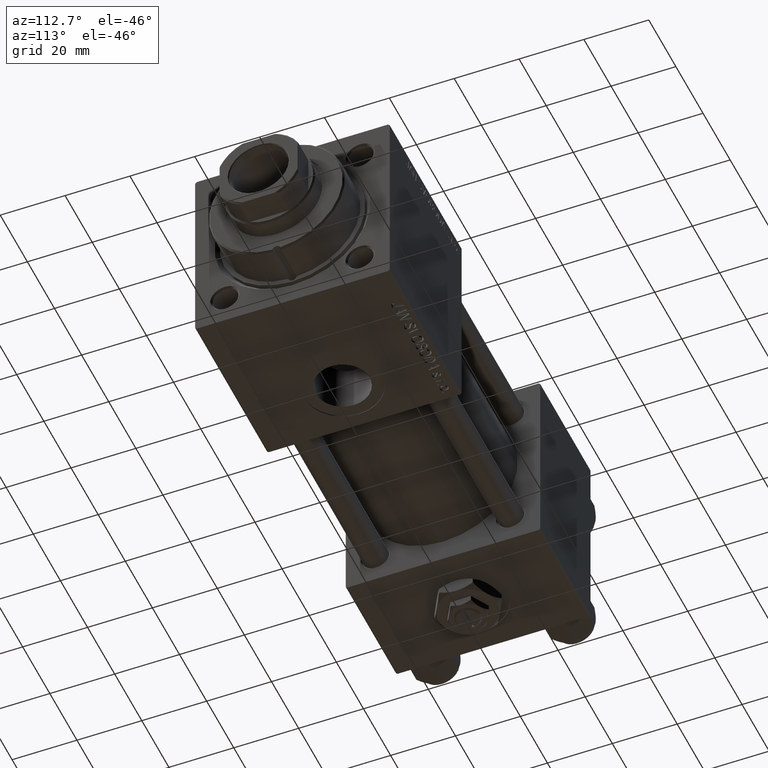
[diagram: clean part render]
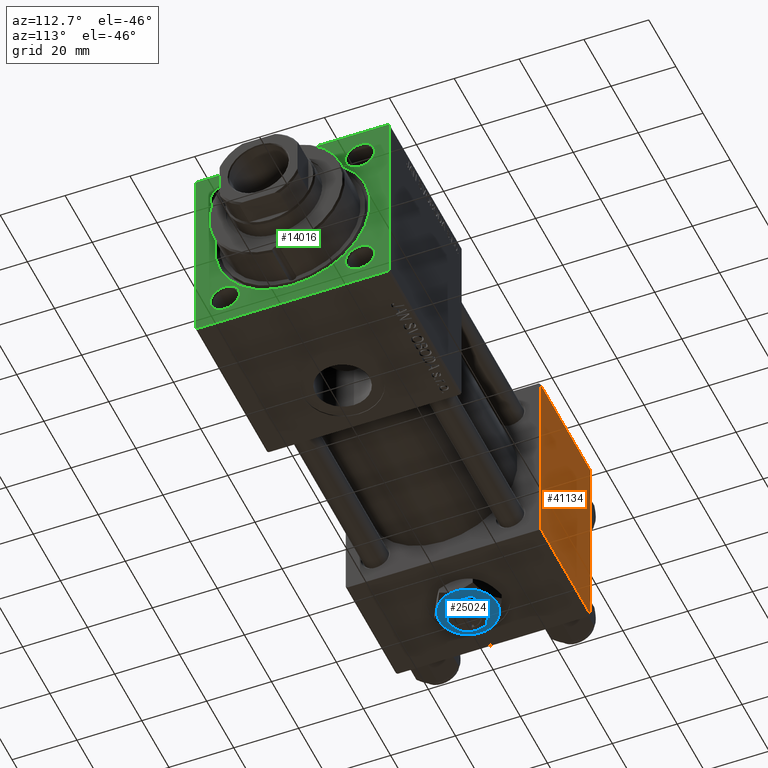
[diagram: same view with three faces highlighted in distinct colors, each labeled with its STEP entity id]
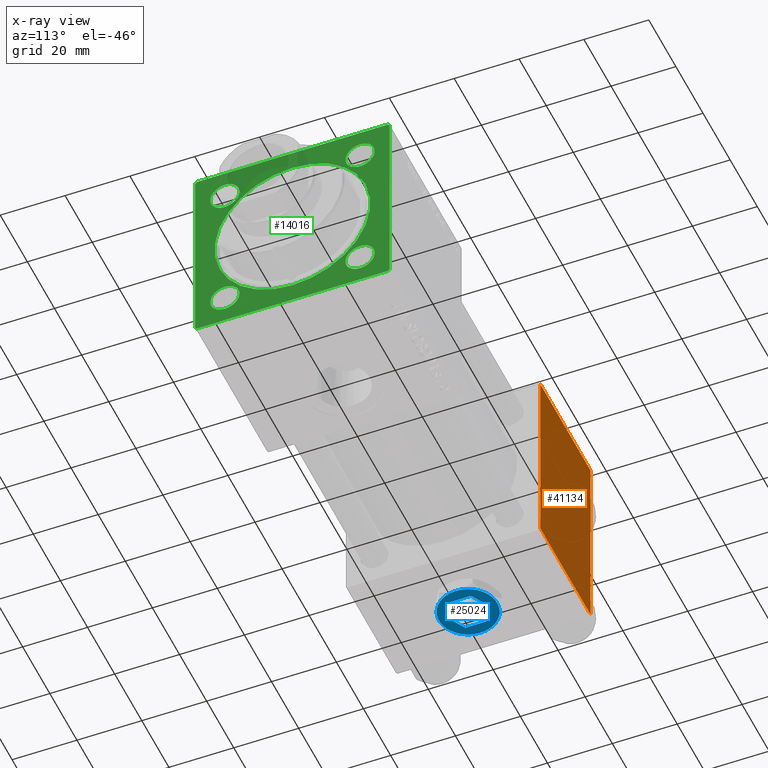
[diagram: x-ray of the same camera — body ghosted, the three highlighted faces saturated]
A machine part, auxiliary view with three faces highlighted in distinct colors.
The next image is the same camera in x-ray (body ghosted, the three faces saturated) — at least one of them is partly hidden behind the body in this view.
Their STEP definitions:

[orange] entity #41134 — the highlighted planar face has unit normal (0, 1, 0).
#448 = DIRECTION ( 'NONE',  ( 0.000000000000000000, 0.000000000000000000, -1.000000000000000000 ) ) ;
#960 = LINE ( 'NONE', #16633, #13147 ) ;
#3804 = CARTESIAN_POINT ( 'NONE',  ( 0.000000000000000000, 29.99999999999999289, 29.50000000000000000 ) ) ;
#4097 = VECTOR ( 'NONE', #15268, 1000.000000000000000 ) ;
#4665 = EDGE_CURVE ( 'NONE', #27742, #17965, #45843, .T. ) ;
#4976 = DIRECTION ( 'NONE',  ( 0.000000000000000000, -0.000000000000000000, 1.000000000000000000 ) ) ;
#6213 = VERTEX_POINT ( 'NONE', #26075 ) ;
#6557 = CARTESIAN_POINT ( 'NONE',  ( 37.00000000000000000, 29.99999999999999289, 29.50000000000000000 ) ) ;
#7133 = VECTOR ( 'NONE', #36559, 1000.000000000000000 ) ;
#8031 = ORIENTED_EDGE ( 'NONE', *, *, #4665, .T. ) ;
#8433 = CARTESIAN_POINT ( 'NONE',  ( 37.00000000000000000, 29.99999999999999289, 30.00000000000000000 ) ) ;
#13147 = VECTOR ( 'NONE', #448, 1000.000000000000000 ) ;
#15268 = DIRECTION ( 'NONE',  ( 1.000000000000000000, 0.000000000000000000, 0.000000000000000000 ) ) ;
#16633 = CARTESIAN_POINT ( 'NONE',  ( 0.000000000000000000, 29.99999999999999289, 30.00000000000000000 ) ) ;
#16919 = FACE_OUTER_BOUND ( 'NONE', #49686, .T. ) ;
#17274 = VERTEX_POINT ( 'NONE', #46588 ) ;
#17965 = VERTEX_POINT ( 'NONE', #6557 ) ;
#21336 = EDGE_CURVE ( 'NONE', #17965, #17274, #28075, .T. ) ;
#23563 = CARTESIAN_POINT ( 'NONE',  ( 37.00000000000000000, 29.99999999999999289, 30.00000000000000000 ) ) ;
#23725 = VECTOR ( 'NONE', #49838, 1000.000000000000000 ) ;
#25648 = EDGE_CURVE ( 'NONE', #27742, #6213, #960, .T. ) ;
#26075 = CARTESIAN_POINT ( 'NONE',  ( 0.000000000000000000, 29.99999999999999289, -29.50000000000000000 ) ) ;
#27470 = ORIENTED_EDGE ( 'NONE', *, *, #25648, .F. ) ;
#27742 = VERTEX_POINT ( 'NONE', #3804 ) ;
#28075 = LINE ( 'NONE', #23563, #7133 ) ;
#34812 = EDGE_CURVE ( 'NONE', #17274, #6213, #36824, .T. ) ;
#36559 = DIRECTION ( 'NONE',  ( 0.000000000000000000, 0.000000000000000000, -1.000000000000000000 ) ) ;
#36824 = LINE ( 'NONE', #41605, #23725 ) ;
#37099 = DIRECTION ( 'NONE',  ( -0.000000000000000000, 1.000000000000000000, 0.000000000000000000 ) ) ;
#38249 = ORIENTED_EDGE ( 'NONE', *, *, #21336, .T. ) ;
#41134 = ADVANCED_FACE ( 'NONE', ( #16919 ), #48799, .T. ) ;
#41605 = CARTESIAN_POINT ( 'NONE',  ( 37.00000000000000000, 29.99999999999999289, -29.50000000000000000 ) ) ;
#41607 = ORIENTED_EDGE ( 'NONE', *, *, #34812, .T. ) ;
#41861 = CARTESIAN_POINT ( 'NONE',  ( 37.00000000000000000, 29.99999999999999289, 29.50000000000000000 ) ) ;
#42650 = AXIS2_PLACEMENT_3D ( 'NONE', #8433, #37099, #4976 ) ;
#45843 = LINE ( 'NONE', #41861, #4097 ) ;
#46588 = CARTESIAN_POINT ( 'NONE',  ( 37.00000000000000000, 29.99999999999999289, -29.50000000000000000 ) ) ;
#48799 = PLANE ( 'NONE',  #42650 ) ;
#49686 = EDGE_LOOP ( 'NONE', ( #38249, #41607, #27470, #8031 ) ) ;
#49838 = DIRECTION ( 'NONE',  ( -1.000000000000000000, 0.000000000000000000, 0.000000000000000000 ) ) ;

[blue] entity #25024 — the highlighted planar face has unit normal (0, -0, -1).
#381 = ORIENTED_EDGE ( 'NONE', *, *, #9295, .T. ) ;
#1992 = VERTEX_POINT ( 'NONE', #48084 ) ;
#2158 = LINE ( 'NONE', #35078, #9221 ) ;
#2186 = ORIENTED_EDGE ( 'NONE', *, *, #42245, .T. ) ;
#3180 = VERTEX_POINT ( 'NONE', #36087 ) ;
#3746 = CARTESIAN_POINT ( 'NONE',  ( -5.500000000000000000, 3.175426480542941743, 4.299999999999999822 ) ) ;
#3763 = EDGE_CURVE ( 'NONE', #19142, #19970, #39657, .T. ) ;
#4172 = CARTESIAN_POINT ( 'NONE',  ( 4.499999999999997335, -7.794228634059948035, 4.299999999999999822 ) ) ;
#4493 = ORIENTED_EDGE ( 'NONE', *, *, #20255, .T. ) ;
#5068 = FACE_OUTER_BOUND ( 'NONE', #18800, .T. ) ;
#6039 = CIRCLE ( 'NONE', #32329, 9.000000000000000000 ) ;
#6346 = EDGE_CURVE ( 'NONE', #20688, #1992, #2158, .T. ) ;
#7048 = VERTEX_POINT ( 'NONE', #10516 ) ;
#7203 = ORIENTED_EDGE ( 'NONE', *, *, #15331, .T. ) ;
#7451 = LINE ( 'NONE', #35074, #46806 ) ;
#7663 = CARTESIAN_POINT ( 'NONE',  ( -4.499999999999998224, -7.794228634059947147, 4.299999999999999822 ) ) ;
#7765 = CARTESIAN_POINT ( 'NONE',  ( 0.000000000000000000, 0.000000000000000000, 4.299999999999999822 ) ) ;
#7955 = AXIS2_PLACEMENT_3D ( 'NONE', #9048, #37452, #36930 ) ;
#8982 = EDGE_CURVE ( 'NONE', #7048, #48124, #51752, .T. ) ;
#9048 = CARTESIAN_POINT ( 'NONE',  ( 0.000000000000000000, 0.000000000000000000, 4.299999999999999822 ) ) ;
#9156 = DIRECTION ( 'NONE',  ( 0.000000000000000000, 0.000000000000000000, 1.000000000000000000 ) ) ;
#9221 = VECTOR ( 'NONE', #15159, 1000.000000000000114 ) ;
#9245 = VECTOR ( 'NONE', #26919, 1000.000000000000000 ) ;
#9295 = EDGE_CURVE ( 'NONE', #27180, #38042, #26293, .T. ) ;
#9560 = AXIS2_PLACEMENT_3D ( 'NONE', #31757, #28041, #52205 ) ;
#9577 = PLANE ( 'NONE',  #7955 ) ;
#10516 = CARTESIAN_POINT ( 'NONE',  ( -1.343581385738006573E-15, -6.350852961085881709, 4.299999999999999822 ) ) ;
#11028 = VECTOR ( 'NONE', #31568, 1000.000000000000000 ) ;
#11055 = DIRECTION ( 'NONE',  ( 0.000000000000000000, 0.000000000000000000, 1.000000000000000000 ) ) ;
#11224 = DIRECTION ( 'NONE',  ( 1.000000000000000000, 0.000000000000000000, 0.000000000000000000 ) ) ;
#12307 = CARTESIAN_POINT ( 'NONE',  ( 0.000000000000000000, 0.000000000000000000, 4.299999999999999822 ) ) ;
#14261 = CARTESIAN_POINT ( 'NONE',  ( 0.000000000000000000, 0.000000000000000000, 4.299999999999999822 ) ) ;
#14469 = ORIENTED_EDGE ( 'NONE', *, *, #23966, .F. ) ;
#15159 = DIRECTION ( 'NONE',  ( -0.8660254037844385966, -0.4999999999999999445, 0.000000000000000000 ) ) ;
#15331 = EDGE_CURVE ( 'NONE', #27753, #27180, #6039, .T. ) ;
#16879 = CARTESIAN_POINT ( 'NONE',  ( 5.499999999999999112, 3.175426480542943075, 4.299999999999999822 ) ) ;
#17157 = ORIENTED_EDGE ( 'NONE', *, *, #43999, .F. ) ;
#18800 = EDGE_LOOP ( 'NONE', ( #38188, #4493, #39419, #2186, #7203, #381 ) ) ;
#19142 = VERTEX_POINT ( 'NONE', #51284 ) ;
#19970 = VERTEX_POINT ( 'NONE', #23466 ) ;
#20208 = DIRECTION ( 'NONE',  ( 0.000000000000000000, -1.000000000000000000, 0.000000000000000000 ) ) ;
#20255 = EDGE_CURVE ( 'NONE', #3180, #19142, #24030, .T. ) ;
#20688 = VERTEX_POINT ( 'NONE', #43922 ) ;
#23014 = CARTESIAN_POINT ( 'NONE',  ( 0.000000000000000000, 0.000000000000000000, 4.299999999999999822 ) ) ;
#23076 = CARTESIAN_POINT ( 'NONE',  ( -1.343581385738006573E-15, -6.350852961085881709, 4.299999999999999822 ) ) ;
#23466 = CARTESIAN_POINT ( 'NONE',  ( -4.500000000000000000, 7.794228634059947147, 4.299999999999999822 ) ) ;
#23966 = EDGE_CURVE ( 'NONE', #1992, #45496, #27666, .T. ) ;
#23991 = CARTESIAN_POINT ( 'NONE',  ( -9.000000000000000000, 0.000000000000000000, 4.299999999999999822 ) ) ;
#24030 = CIRCLE ( 'NONE', #48628, 9.000000000000000000 ) ;
#25024 = ADVANCED_FACE ( 'NONE', ( #5068, #49948 ), #9577, .T. ) ;
#26166 = ORIENTED_EDGE ( 'NONE', *, *, #33114, .F. ) ;
#26293 = CIRCLE ( 'NONE', #46637, 9.000000000000000000 ) ;
#26919 = DIRECTION ( 'NONE',  ( 0.8660254037844387076, -0.4999999999999998890, 0.000000000000000000 ) ) ;
#27168 = DIRECTION ( 'NONE',  ( 0.000000000000000000, 0.000000000000000000, 1.000000000000000000 ) ) ;
#27180 = VERTEX_POINT ( 'NONE', #7663 ) ;
#27666 = LINE ( 'NONE', #3746, #47905 ) ;
#27753 = VERTEX_POINT ( 'NONE', #23991 ) ;
#28041 = DIRECTION ( 'NONE',  ( 0.000000000000000000, 0.000000000000000000, 1.000000000000000000 ) ) ;
#28226 = LINE ( 'NONE', #48395, #38911 ) ;
#28410 = VERTEX_POINT ( 'NONE', #16879 ) ;
#29027 = DIRECTION ( 'NONE',  ( 0.000000000000000000, 0.000000000000000000, 1.000000000000000000 ) ) ;
#29403 = CARTESIAN_POINT ( 'NONE',  ( -5.500000000000000000, -3.175426480542942187, 4.299999999999999822 ) ) ;
#31568 = DIRECTION ( 'NONE',  ( 0.8660254037844388186, 0.4999999999999997224, 0.000000000000000000 ) ) ;
#31757 = CARTESIAN_POINT ( 'NONE',  ( 0.000000000000000000, 0.000000000000000000, 4.299999999999999822 ) ) ;
#31961 = DIRECTION ( 'NONE',  ( 1.000000000000000000, 0.000000000000000000, 0.000000000000000000 ) ) ;
#32329 = AXIS2_PLACEMENT_3D ( 'NONE', #7765, #27168, #11224 ) ;
#32435 = CIRCLE ( 'NONE', #9560, 9.000000000000000000 ) ;
#33114 = EDGE_CURVE ( 'NONE', #45496, #7048, #39111, .T. ) ;
#33237 = EDGE_CURVE ( 'NONE', #28410, #20688, #28226, .T. ) ;
#33351 = CIRCLE ( 'NONE', #40976, 9.000000000000000000 ) ;
#35074 = CARTESIAN_POINT ( 'NONE',  ( 5.500000000000000888, -3.175426480542940855, 4.299999999999999822 ) ) ;
#35078 = CARTESIAN_POINT ( 'NONE',  ( 0.000000000000000000, 6.350852961085883486, 4.299999999999999822 ) ) ;
#35148 = ORIENTED_EDGE ( 'NONE', *, *, #8982, .F. ) ;
#35786 = ORIENTED_EDGE ( 'NONE', *, *, #33237, .F. ) ;
#36087 = CARTESIAN_POINT ( 'NONE',  ( 8.999999999999998224, 0.000000000000000000, 4.299999999999999822 ) ) ;
#36429 = EDGE_LOOP ( 'NONE', ( #45647, #35786, #17157, #35148, #26166, #14469 ) ) ;
#36930 = DIRECTION ( 'NONE',  ( 1.000000000000000000, 0.000000000000000000, -0.000000000000000000 ) ) ;
#37299 = DIRECTION ( 'NONE',  ( 1.000000000000000000, 0.000000000000000000, 0.000000000000000000 ) ) ;
#37452 = DIRECTION ( 'NONE',  ( 0.000000000000000000, 0.000000000000000000, 1.000000000000000000 ) ) ;
#38042 = VERTEX_POINT ( 'NONE', #4172 ) ;
#38188 = ORIENTED_EDGE ( 'NONE', *, *, #42157, .T. ) ;
#38911 = VECTOR ( 'NONE', #48659, 1000.000000000000000 ) ;
#38931 = DIRECTION ( 'NONE',  ( 0.000000000000000000, 0.000000000000000000, 1.000000000000000000 ) ) ;
#39111 = LINE ( 'NONE', #43645, #9245 ) ;
#39419 = ORIENTED_EDGE ( 'NONE', *, *, #3763, .T. ) ;
#39657 = CIRCLE ( 'NONE', #47278, 9.000000000000000000 ) ;
#40976 = AXIS2_PLACEMENT_3D ( 'NONE', #49001, #9156, #37299 ) ;
#42157 = EDGE_CURVE ( 'NONE', #38042, #3180, #32435, .T. ) ;
#42245 = EDGE_CURVE ( 'NONE', #19970, #27753, #33351, .T. ) ;
#42420 = DIRECTION ( 'NONE',  ( 1.000000000000000000, 0.000000000000000000, 0.000000000000000000 ) ) ;
#42944 = DIRECTION ( 'NONE',  ( 1.000000000000000000, 0.000000000000000000, 0.000000000000000000 ) ) ;
#43645 = CARTESIAN_POINT ( 'NONE',  ( -5.500000000000000000, -3.175426480542942187, 4.299999999999999822 ) ) ;
#43922 = CARTESIAN_POINT ( 'NONE',  ( 0.000000000000000000, 6.350852961085883486, 4.299999999999999822 ) ) ;
#43999 = EDGE_CURVE ( 'NONE', #48124, #28410, #7451, .T. ) ;
#45496 = VERTEX_POINT ( 'NONE', #29403 ) ;
#45647 = ORIENTED_EDGE ( 'NONE', *, *, #6346, .F. ) ;
#46637 = AXIS2_PLACEMENT_3D ( 'NONE', #14261, #38931, #42944 ) ;
#46806 = VECTOR ( 'NONE', #51791, 1000.000000000000000 ) ;
#47278 = AXIS2_PLACEMENT_3D ( 'NONE', #12307, #29027, #31961 ) ;
#47905 = VECTOR ( 'NONE', #20208, 1000.000000000000000 ) ;
#48084 = CARTESIAN_POINT ( 'NONE',  ( -5.500000000000000000, 3.175426480542941743, 4.299999999999999822 ) ) ;
#48124 = VERTEX_POINT ( 'NONE', #48942 ) ;
#48395 = CARTESIAN_POINT ( 'NONE',  ( 5.499999999999999112, 3.175426480542943075, 4.299999999999999822 ) ) ;
#48628 = AXIS2_PLACEMENT_3D ( 'NONE', #23014, #11055, #42420 ) ;
#48659 = DIRECTION ( 'NONE',  ( -0.8660254037844387076, 0.4999999999999999445, 0.000000000000000000 ) ) ;
#48942 = CARTESIAN_POINT ( 'NONE',  ( 5.500000000000000888, -3.175426480542940855, 4.299999999999999822 ) ) ;
#49001 = CARTESIAN_POINT ( 'NONE',  ( 0.000000000000000000, 0.000000000000000000, 4.299999999999999822 ) ) ;
#49948 = FACE_BOUND ( 'NONE', #36429, .T. ) ;
#51284 = CARTESIAN_POINT ( 'NONE',  ( 4.500000000000000000, 7.794228634059947147, 4.299999999999999822 ) ) ;
#51752 = LINE ( 'NONE', #23076, #11028 ) ;
#51791 = DIRECTION ( 'NONE',  ( -2.731481088613017227E-16, 1.000000000000000000, 0.000000000000000000 ) ) ;
#52205 = DIRECTION ( 'NONE',  ( 1.000000000000000000, 0.000000000000000000, 0.000000000000000000 ) ) ;

[green] entity #14016 — the highlighted planar face has unit normal (-1, 0, 0).
#268 = DIRECTION ( 'NONE',  ( 0.000000000000000000, 0.000000000000000000, 1.000000000000000000 ) ) ;
#529 = ORIENTED_EDGE ( 'NONE', *, *, #23043, .T. ) ;
#614 = DIRECTION ( 'NONE',  ( 0.000000000000000000, 0.000000000000000000, 1.000000000000000000 ) ) ;
#855 = DIRECTION ( 'NONE',  ( 0.000000000000000000, 0.000000000000000000, 1.000000000000000000 ) ) ;
#1070 = VECTOR ( 'NONE', #33973, 1000.000000000000114 ) ;
#1334 = CARTESIAN_POINT ( 'NONE',  ( 148.0000000000000000, 20.84999999999999787, -20.85000000000000142 ) ) ;
#1670 = EDGE_LOOP ( 'NONE', ( #31644, #13446 ) ) ;
#1743 = CIRCLE ( 'NONE', #5989, 4.500000000000017764 ) ;
#1928 = LINE ( 'NONE', #38033, #24387 ) ;
#2193 = EDGE_CURVE ( 'NONE', #45841, #49703, #29326, .T. ) ;
#2514 = FACE_BOUND ( 'NONE', #24254, .T. ) ;
#2841 = DIRECTION ( 'NONE',  ( -1.000000000000000000, 0.000000000000000000, -0.000000000000000000 ) ) ;
#2845 = EDGE_LOOP ( 'NONE', ( #48199, #37783 ) ) ;
#3543 = CARTESIAN_POINT ( 'NONE',  ( 148.0000000000000000, -30.00000000000000000, -29.49999999999998579 ) ) ;
#3619 = EDGE_CURVE ( 'NONE', #45393, #12062, #9170, .T. ) ;
#3770 = CIRCLE ( 'NONE', #39404, 4.500000000000017764 ) ;
#3885 = EDGE_CURVE ( 'NONE', #31444, #33824, #1928, .T. ) ;
#3899 = ORIENTED_EDGE ( 'NONE', *, *, #50104, .T. ) ;
#4513 = LINE ( 'NONE', #21230, #12541 ) ;
#4699 = EDGE_LOOP ( 'NONE', ( #529, #12452, #27360, #11138, #13552, #22848, #24352, #31341 ) ) ;
#4827 = CARTESIAN_POINT ( 'NONE',  ( 148.0000000000000000, 30.00000000000000000, -29.99999999999999289 ) ) ;
#5391 = EDGE_CURVE ( 'NONE', #30868, #28001, #24419, .T. ) ;
#5783 = DIRECTION ( 'NONE',  ( 0.000000000000000000, 0.000000000000000000, 1.000000000000000000 ) ) ;
#5978 = DIRECTION ( 'NONE',  ( -0.000000000000000000, 0.7071067811865474617, 0.7071067811865474617 ) ) ;
#5989 = AXIS2_PLACEMENT_3D ( 'NONE', #37223, #20517, #855 ) ;
#6264 = VERTEX_POINT ( 'NONE', #9864 ) ;
#7355 = EDGE_CURVE ( 'NONE', #35449, #6264, #27080, .T. ) ;
#7510 = VERTEX_POINT ( 'NONE', #14699 ) ;
#8382 = EDGE_CURVE ( 'NONE', #14803, #7510, #30487, .T. ) ;
#8683 = CARTESIAN_POINT ( 'NONE',  ( 148.0000000000000000, -30.00000000000000000, 29.49999999999999289 ) ) ;
#9043 = CARTESIAN_POINT ( 'NONE',  ( 148.0000000000000000, 20.84999999999999787, -16.34999999999998366 ) ) ;
#9121 = CARTESIAN_POINT ( 'NONE',  ( 148.0000000000000000, -30.00000000000000000, 29.49999999999999289 ) ) ;
#9170 = LINE ( 'NONE', #37578, #43913 ) ;
#9232 = DIRECTION ( 'NONE',  ( -1.000000000000000000, 0.000000000000000000, -0.000000000000000000 ) ) ;
#9250 = EDGE_LOOP ( 'NONE', ( #30861, #37966 ) ) ;
#9263 = EDGE_CURVE ( 'NONE', #44538, #39688, #50878, .T. ) ;
#9529 = LINE ( 'NONE', #17751, #25517 ) ;
#9864 = CARTESIAN_POINT ( 'NONE',  ( 148.0000000000000000, -20.85000000000000142, -16.34999999999998366 ) ) ;
#9994 = CARTESIAN_POINT ( 'NONE',  ( 148.0000000000000000, 20.84999999999999787, -25.35000000000001918 ) ) ;
#10228 = AXIS2_PLACEMENT_3D ( 'NONE', #34662, #10490, #51124 ) ;
#10452 = EDGE_CURVE ( 'NONE', #49703, #45841, #38212, .T. ) ;
#10490 = DIRECTION ( 'NONE',  ( -1.000000000000000000, 0.000000000000000000, -0.000000000000000000 ) ) ;
#10500 = VERTEX_POINT ( 'NONE', #27221 ) ;
#10817 = EDGE_CURVE ( 'NONE', #33824, #10500, #9529, .T. ) ;
#11138 = ORIENTED_EDGE ( 'NONE', *, *, #3619, .T. ) ;
#11678 = DIRECTION ( 'NONE',  ( -1.000000000000000000, 0.000000000000000000, -0.000000000000000000 ) ) ;
#12007 = LINE ( 'NONE', #4827, #27183 ) ;
#12062 = VERTEX_POINT ( 'NONE', #33442 ) ;
#12322 = DIRECTION ( 'NONE',  ( -0.000000000000000000, -0.7071067811865474617, -0.7071067811865474617 ) ) ;
#12452 = ORIENTED_EDGE ( 'NONE', *, *, #18604, .T. ) ;
#12483 = DIRECTION ( 'NONE',  ( 0.000000000000000000, 0.000000000000000000, 1.000000000000000000 ) ) ;
#12541 = VECTOR ( 'NONE', #48858, 1000.000000000000000 ) ;
#12549 = AXIS2_PLACEMENT_3D ( 'NONE', #36114, #11678, #268 ) ;
#13446 = ORIENTED_EDGE ( 'NONE', *, *, #10452, .T. ) ;
#13552 = ORIENTED_EDGE ( 'NONE', *, *, #30488, .F. ) ;
#13694 = FACE_BOUND ( 'NONE', #2845, .T. ) ;
#13729 = CIRCLE ( 'NONE', #22182, 4.500000000000017764 ) ;
#14016 = ADVANCED_FACE ( 'NONE', ( #2514, #17943, #13694, #50857, #38635, #14215 ), #18715, .F. ) ;
#14055 = DIRECTION ( 'NONE',  ( 0.000000000000000000, 0.000000000000000000, -1.000000000000000000 ) ) ;
#14215 = FACE_OUTER_BOUND ( 'NONE', #4699, .T. ) ;
#14249 = EDGE_CURVE ( 'NONE', #10500, #32752, #33557, .T. ) ;
#14470 = DIRECTION ( 'NONE',  ( 0.000000000000000000, 0.000000000000000000, 1.000000000000000000 ) ) ;
#14699 = CARTESIAN_POINT ( 'NONE',  ( 148.0000000000000000, -20.84999999999999432, 25.35000000000001918 ) ) ;
#14803 = VERTEX_POINT ( 'NONE', #31536 ) ;
#15064 = DIRECTION ( 'NONE',  ( 0.000000000000000000, 0.000000000000000000, 1.000000000000000000 ) ) ;
#16001 = DIRECTION ( 'NONE',  ( 0.000000000000000000, -1.000000000000000000, -1.156482317317871478E-16 ) ) ;
#16429 = EDGE_CURVE ( 'NONE', #39688, #44538, #13729, .T. ) ;
#17243 = LINE ( 'NONE', #17510, #1070 ) ;
#17510 = CARTESIAN_POINT ( 'NONE',  ( 148.0000000000000000, -29.50000000000000000, -30.00000000000000000 ) ) ;
#17527 = DIRECTION ( 'NONE',  ( -1.000000000000000000, 0.000000000000000000, -0.000000000000000000 ) ) ;
#17751 = CARTESIAN_POINT ( 'NONE',  ( 148.0000000000000000, 30.00000000000000000, 30.00000000000000000 ) ) ;
#17943 = FACE_BOUND ( 'NONE', #34482, .T. ) ;
#18604 = EDGE_CURVE ( 'NONE', #48053, #46120, #17243, .T. ) ;
#18715 = PLANE ( 'NONE',  #10228 ) ;
#20260 = DIRECTION ( 'NONE',  ( -1.000000000000000000, 0.000000000000000000, -0.000000000000000000 ) ) ;
#20517 = DIRECTION ( 'NONE',  ( -1.000000000000000000, 0.000000000000000000, -0.000000000000000000 ) ) ;
#21230 = CARTESIAN_POINT ( 'NONE',  ( 148.0000000000000000, 30.00000000000000000, 30.00000000000000000 ) ) ;
#22149 = DIRECTION ( 'NONE',  ( 0.000000000000000000, 0.000000000000000000, 1.000000000000000000 ) ) ;
#22182 = AXIS2_PLACEMENT_3D ( 'NONE', #36135, #41170, #12483 ) ;
#22848 = ORIENTED_EDGE ( 'NONE', *, *, #3885, .T. ) ;
#23029 = CARTESIAN_POINT ( 'NONE',  ( 148.0000000000000000, 0.000000000000000000, 0.000000000000000000 ) ) ;
#23043 = EDGE_CURVE ( 'NONE', #32752, #48053, #34246, .T. ) ;
#24254 = EDGE_LOOP ( 'NONE', ( #50358, #50281 ) ) ;
#24352 = ORIENTED_EDGE ( 'NONE', *, *, #10817, .T. ) ;
#24387 = VECTOR ( 'NONE', #42042, 1000.000000000000114 ) ;
#24419 = CIRCLE ( 'NONE', #12549, 24.00000000000003908 ) ;
#24655 = CARTESIAN_POINT ( 'NONE',  ( 148.0000000000000000, 2.939152317953652628E-15, 24.00000000000003908 ) ) ;
#25341 = CARTESIAN_POINT ( 'NONE',  ( 148.0000000000000000, -29.50000000000000000, -30.00000000000000000 ) ) ;
#25446 = AXIS2_PLACEMENT_3D ( 'NONE', #29414, #9232, #5783 ) ;
#25517 = VECTOR ( 'NONE', #50160, 1000.000000000000000 ) ;
#26284 = CARTESIAN_POINT ( 'NONE',  ( 148.0000000000000000, 30.00000000000000000, 29.50000000000000000 ) ) ;
#27080 = CIRCLE ( 'NONE', #49102, 4.500000000000017764 ) ;
#27183 = VECTOR ( 'NONE', #16001, 1000.000000000000000 ) ;
#27187 = VECTOR ( 'NONE', #12322, 1000.000000000000114 ) ;
#27221 = CARTESIAN_POINT ( 'NONE',  ( 148.0000000000000000, -29.50000000000000000, 29.99999999999999289 ) ) ;
#27278 = DIRECTION ( 'NONE',  ( -1.000000000000000000, 0.000000000000000000, -0.000000000000000000 ) ) ;
#27360 = ORIENTED_EDGE ( 'NONE', *, *, #35366, .F. ) ;
#27601 = AXIS2_PLACEMENT_3D ( 'NONE', #23029, #2841, #15064 ) ;
#28001 = VERTEX_POINT ( 'NONE', #24655 ) ;
#28428 = CIRCLE ( 'NONE', #27601, 24.00000000000003908 ) ;
#28745 = CARTESIAN_POINT ( 'NONE',  ( 148.0000000000000000, 0.000000000000000000, -24.00000000000003908 ) ) ;
#29326 = CIRCLE ( 'NONE', #42076, 4.500000000000017764 ) ;
#29414 = CARTESIAN_POINT ( 'NONE',  ( 148.0000000000000000, 20.84999999999999787, 20.85000000000000142 ) ) ;
#30377 = DIRECTION ( 'NONE',  ( -1.000000000000000000, 0.000000000000000000, -0.000000000000000000 ) ) ;
#30487 = CIRCLE ( 'NONE', #33904, 4.500000000000017764 ) ;
#30488 = EDGE_CURVE ( 'NONE', #31444, #12062, #4513, .T. ) ;
#30635 = CARTESIAN_POINT ( 'NONE',  ( 148.0000000000000000, -20.85000000000000142, -20.85000000000000142 ) ) ;
#30861 = ORIENTED_EDGE ( 'NONE', *, *, #5391, .T. ) ;
#30868 = VERTEX_POINT ( 'NONE', #28745 ) ;
#31341 = ORIENTED_EDGE ( 'NONE', *, *, #14249, .T. ) ;
#31444 = VERTEX_POINT ( 'NONE', #26284 ) ;
#31536 = CARTESIAN_POINT ( 'NONE',  ( 148.0000000000000000, -20.84999999999999432, 16.34999999999998366 ) ) ;
#31644 = ORIENTED_EDGE ( 'NONE', *, *, #2193, .T. ) ;
#31766 = VECTOR ( 'NONE', #14055, 1000.000000000000000 ) ;
#32333 = CARTESIAN_POINT ( 'NONE',  ( 148.0000000000000000, 29.50000000000000000, -29.99999999999999289 ) ) ;
#32752 = VERTEX_POINT ( 'NONE', #8683 ) ;
#33442 = CARTESIAN_POINT ( 'NONE',  ( 148.0000000000000000, 30.00000000000000000, -29.49999999999997868 ) ) ;
#33557 = LINE ( 'NONE', #9121, #27187 ) ;
#33730 = DIRECTION ( 'NONE',  ( 0.000000000000000000, 0.000000000000000000, 1.000000000000000000 ) ) ;
#33824 = VERTEX_POINT ( 'NONE', #46462 ) ;
#33904 = AXIS2_PLACEMENT_3D ( 'NONE', #45476, #20260, #614 ) ;
#33973 = DIRECTION ( 'NONE',  ( 0.000000000000000000, 0.7071067811865474617, -0.7071067811865474617 ) ) ;
#34246 = LINE ( 'NONE', #42474, #31766 ) ;
#34482 = EDGE_LOOP ( 'NONE', ( #38364, #3899 ) ) ;
#34662 = CARTESIAN_POINT ( 'NONE',  ( 148.0000000000000000, 0.000000000000000000, 0.000000000000000000 ) ) ;
#35366 = EDGE_CURVE ( 'NONE', #45393, #46120, #12007, .T. ) ;
#35449 = VERTEX_POINT ( 'NONE', #37212 ) ;
#36070 = CARTESIAN_POINT ( 'NONE',  ( 148.0000000000000000, 20.84999999999999787, 16.34999999999998366 ) ) ;
#36114 = CARTESIAN_POINT ( 'NONE',  ( 148.0000000000000000, 0.000000000000000000, 0.000000000000000000 ) ) ;
#36135 = CARTESIAN_POINT ( 'NONE',  ( 148.0000000000000000, 20.84999999999999787, 20.85000000000000142 ) ) ;
#36197 = EDGE_CURVE ( 'NONE', #6264, #35449, #1743, .T. ) ;
#37212 = CARTESIAN_POINT ( 'NONE',  ( 148.0000000000000000, -20.85000000000000142, -25.35000000000001918 ) ) ;
#37223 = CARTESIAN_POINT ( 'NONE',  ( 148.0000000000000000, -20.85000000000000142, -20.85000000000000142 ) ) ;
#37578 = CARTESIAN_POINT ( 'NONE',  ( 148.0000000000000000, 30.00000000000000000, -29.49999999999999289 ) ) ;
#37783 = ORIENTED_EDGE ( 'NONE', *, *, #36197, .T. ) ;
#37966 = ORIENTED_EDGE ( 'NONE', *, *, #50989, .T. ) ;
#38033 = CARTESIAN_POINT ( 'NONE',  ( 148.0000000000000000, 29.50000000000000000, 30.00000000000000000 ) ) ;
#38212 = CIRCLE ( 'NONE', #45012, 4.500000000000017764 ) ;
#38364 = ORIENTED_EDGE ( 'NONE', *, *, #8382, .T. ) ;
#38635 = FACE_BOUND ( 'NONE', #9250, .T. ) ;
#39404 = AXIS2_PLACEMENT_3D ( 'NONE', #39742, #27278, #47970 ) ;
#39450 = CARTESIAN_POINT ( 'NONE',  ( 148.0000000000000000, 20.84999999999999787, 25.35000000000001918 ) ) ;
#39688 = VERTEX_POINT ( 'NONE', #36070 ) ;
#39742 = CARTESIAN_POINT ( 'NONE',  ( 148.0000000000000000, -20.84999999999999432, 20.85000000000000142 ) ) ;
#41170 = DIRECTION ( 'NONE',  ( -1.000000000000000000, 0.000000000000000000, -0.000000000000000000 ) ) ;
#41855 = DIRECTION ( 'NONE',  ( -1.000000000000000000, 0.000000000000000000, -0.000000000000000000 ) ) ;
#42042 = DIRECTION ( 'NONE',  ( 0.000000000000000000, -0.7071067811865474617, 0.7071067811865474617 ) ) ;
#42076 = AXIS2_PLACEMENT_3D ( 'NONE', #1334, #17527, #33730 ) ;
#42373 = CARTESIAN_POINT ( 'NONE',  ( 148.0000000000000000, 20.84999999999999787, -20.85000000000000142 ) ) ;
#42474 = CARTESIAN_POINT ( 'NONE',  ( 148.0000000000000000, -30.00000000000000000, 29.99999999999999289 ) ) ;
#43913 = VECTOR ( 'NONE', #5978, 1000.000000000000114 ) ;
#44538 = VERTEX_POINT ( 'NONE', #39450 ) ;
#45012 = AXIS2_PLACEMENT_3D ( 'NONE', #42373, #41855, #14470 ) ;
#45393 = VERTEX_POINT ( 'NONE', #32333 ) ;
#45476 = CARTESIAN_POINT ( 'NONE',  ( 148.0000000000000000, -20.84999999999999432, 20.85000000000000142 ) ) ;
#45841 = VERTEX_POINT ( 'NONE', #9994 ) ;
#46120 = VERTEX_POINT ( 'NONE', #25341 ) ;
#46462 = CARTESIAN_POINT ( 'NONE',  ( 148.0000000000000000, 29.50000000000000000, 30.00000000000000000 ) ) ;
#47970 = DIRECTION ( 'NONE',  ( 0.000000000000000000, 0.000000000000000000, 1.000000000000000000 ) ) ;
#48053 = VERTEX_POINT ( 'NONE', #3543 ) ;
#48199 = ORIENTED_EDGE ( 'NONE', *, *, #7355, .T. ) ;
#48858 = DIRECTION ( 'NONE',  ( 0.000000000000000000, 0.000000000000000000, -1.000000000000000000 ) ) ;
#49102 = AXIS2_PLACEMENT_3D ( 'NONE', #30635, #30377, #22149 ) ;
#49703 = VERTEX_POINT ( 'NONE', #9043 ) ;
#50104 = EDGE_CURVE ( 'NONE', #7510, #14803, #3770, .T. ) ;
#50160 = DIRECTION ( 'NONE',  ( 0.000000000000000000, -1.000000000000000000, -1.156482317317871478E-16 ) ) ;
#50281 = ORIENTED_EDGE ( 'NONE', *, *, #9263, .T. ) ;
#50358 = ORIENTED_EDGE ( 'NONE', *, *, #16429, .T. ) ;
#50857 = FACE_BOUND ( 'NONE', #1670, .T. ) ;
#50878 = CIRCLE ( 'NONE', #25446, 4.500000000000017764 ) ;
#50989 = EDGE_CURVE ( 'NONE', #28001, #30868, #28428, .T. ) ;
#51124 = DIRECTION ( 'NONE',  ( -0.000000000000000000, 0.000000000000000000, 1.000000000000000000 ) ) ;